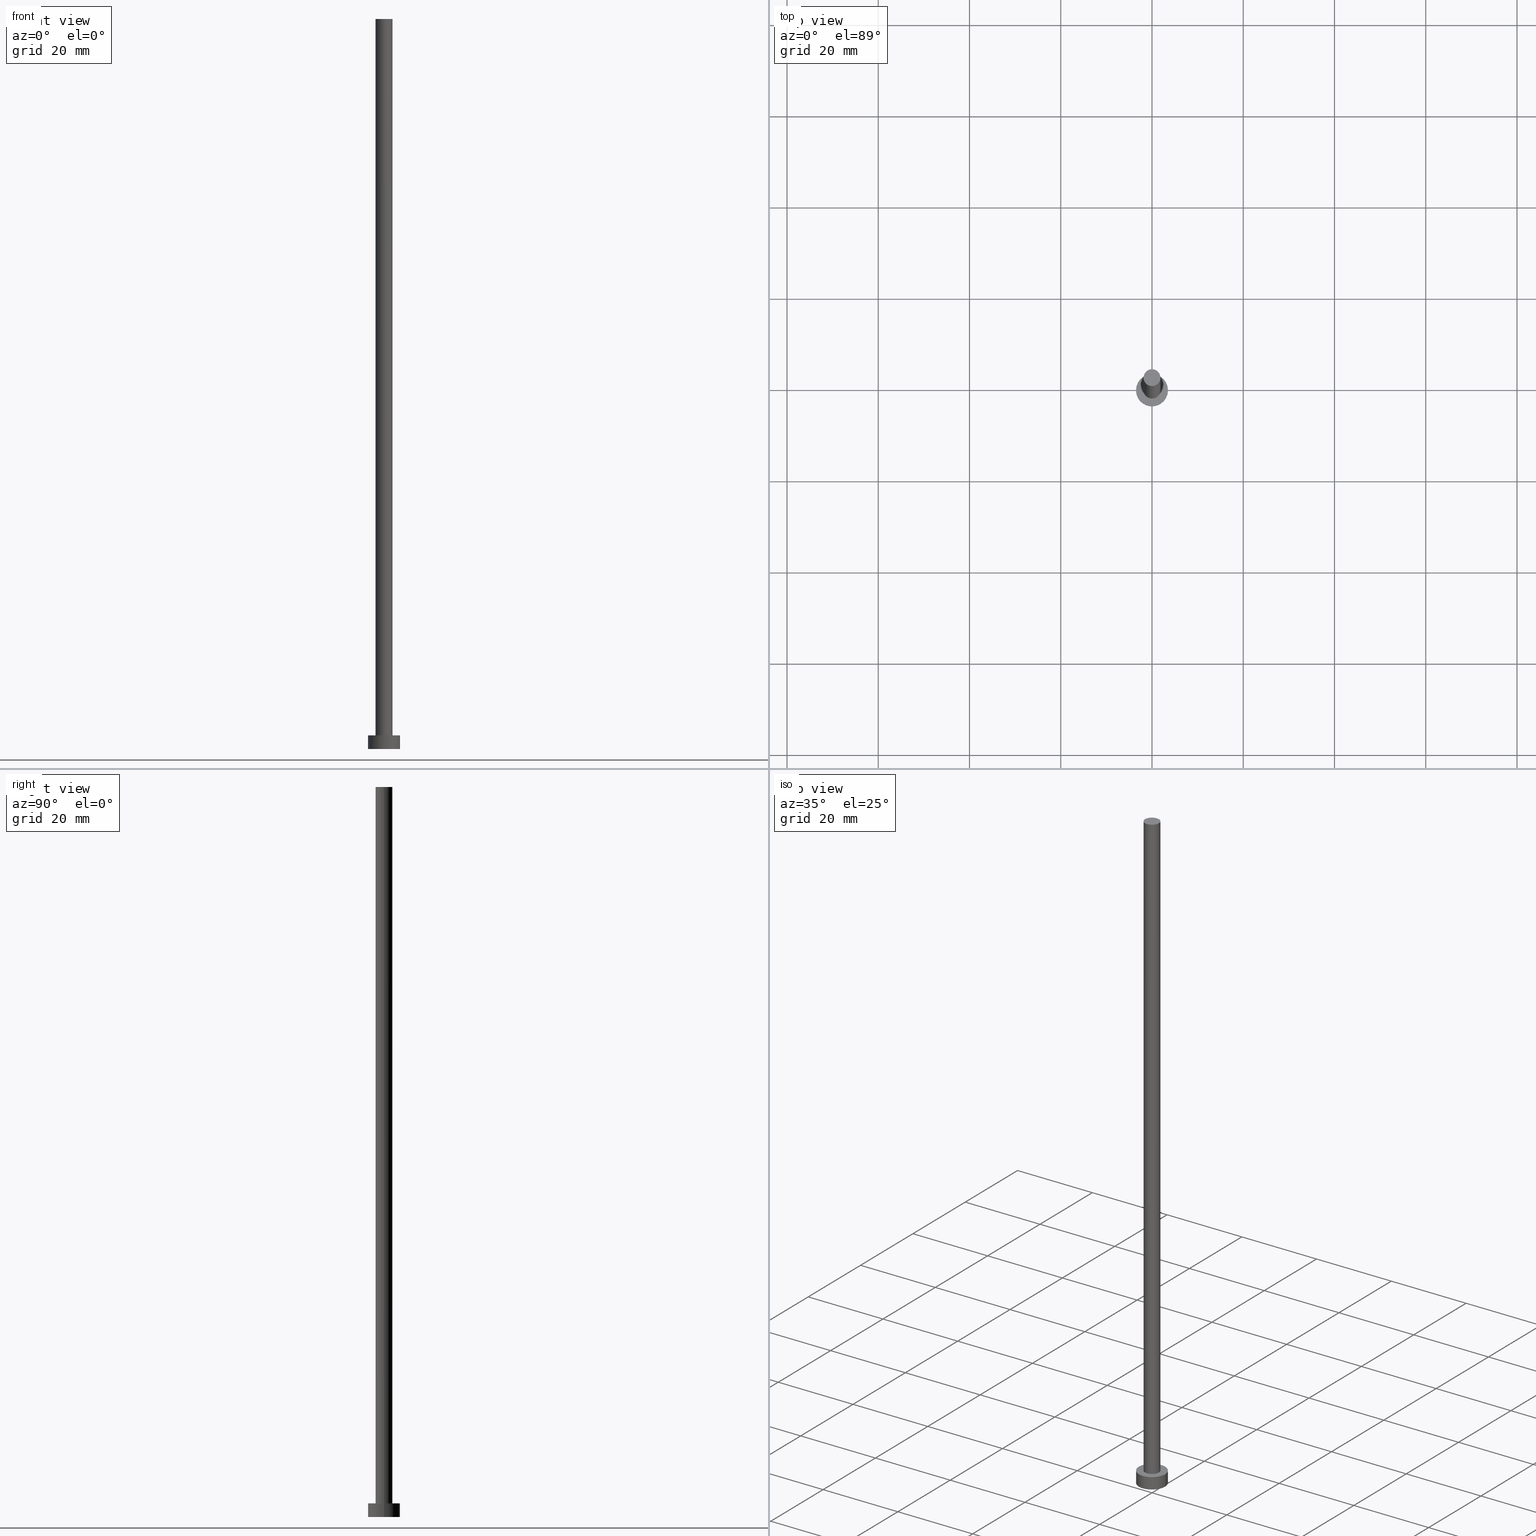
[diagram: canonical four-view strip — front | top / right | iso, engineering-drawing reading convention]
A machine part, canonical four-view strip (front | top / right | iso — engineering-drawing reading convention). The complete STEP part file that produces these views, byte-faithful:
ISO-10303-21;
HEADER;
FILE_DESCRIPTION (( 'STEP AP203' ),
    '1' );
FILE_NAME ('5fde.STEP',
    '2026-02-06T12:43:08',
    ( '' ),
    ( '' ),
    'SwSTEP 2.0',
    'SolidWorks 2019',
    '' );
FILE_SCHEMA (( 'CONFIG_CONTROL_DESIGN' ));
ENDSEC;

DATA;
#1 = AXIS2_PLACEMENT_3D ( 'NONE', #151, #194, #233 ) ;
#2 = DATE_TIME_ROLE ( 'classification_date' ) ;
#3 = AXIS2_PLACEMENT_3D ( 'NONE', #152, #169, #44 ) ;
#4 = EDGE_CURVE ( 'NONE', #75, #63, #158, .T. ) ;
#5 = PERSON_AND_ORGANIZATION ( #40, #109 ) ;
#6 = ORIENTED_EDGE ( 'NONE', *, *, #200, .T. ) ;
#7 = CC_DESIGN_PERSON_AND_ORGANIZATION_ASSIGNMENT ( #5, #221, ( #83 ) ) ;
#8 = EDGE_CURVE ( 'NONE', #201, #178, #189, .T. ) ;
#9 = LINE ( 'NONE', #103, #110 ) ;
#10 = CLOSED_SHELL ( 'NONE', ( #156, #244, #45, #124, #87, #240, #174 ) ) ;
#11 = CARTESIAN_POINT ( 'NONE',  ( 3.500000000000000444, 4.286263797015737088E-16, 0.000000000000000000 ) ) ;
#12 = DESIGN_CONTEXT ( 'detailed design', #133, 'design' ) ;
#13 = DIRECTION ( 'NONE',  ( 1.000000000000000000, 0.000000000000000000, -0.000000000000000000 ) ) ;
#14 = ADVANCED_BREP_SHAPE_REPRESENTATION ( '5fde', ( #214, #93 ), #230 ) ;
#15 = CARTESIAN_POINT ( 'NONE',  ( 0.000000000000000000, 0.000000000000000000, 3.000000000000000000 ) ) ;
#16 = CALENDAR_DATE ( 2026, 6, 2 ) ;
#17 = DIRECTION ( 'NONE',  ( 0.000000000000000000, 0.000000000000000000, 1.000000000000000000 ) ) ;
#18 = SECURITY_CLASSIFICATION ( '', '', #224 ) ;
#19 = CARTESIAN_POINT ( 'NONE',  ( 0.000000000000000000, 0.000000000000000000, 160.0000000000000000 ) ) ;
#20 = APPROVAL_STATUS ( 'not_yet_approved' ) ;
#21 = VERTEX_POINT ( 'NONE', #11 ) ;
#22 = EDGE_CURVE ( 'NONE', #21, #178, #53, .T. ) ;
#23 = PERSON_AND_ORGANIZATION ( #40, #109 ) ;
#24 = VERTEX_POINT ( 'NONE', #191 ) ;
#25 = CIRCLE ( 'NONE', #125, 1.850000000000000089 ) ;
#26 = ORIENTED_EDGE ( 'NONE', *, *, #106, .F. ) ;
#27 = COORDINATED_UNIVERSAL_TIME_OFFSET ( 1, 0, .AHEAD. ) ;
#28 = DIRECTION ( 'NONE',  ( 1.000000000000000000, 0.000000000000000000, 0.000000000000000000 ) ) ;
#29 = CIRCLE ( 'NONE', #72, 3.500000000000000444 ) ;
#30 = CARTESIAN_POINT ( 'NONE',  ( 0.000000000000000000, 0.000000000000000000, 0.000000000000000000 ) ) ;
#31 = EDGE_LOOP ( 'NONE', ( #131, #39 ) ) ;
#32 = FACE_OUTER_BOUND ( 'NONE', #239, .T. ) ;
#33 = ORIENTED_EDGE ( 'NONE', *, *, #185, .F. ) ;
#34 = ORIENTED_EDGE ( 'NONE', *, *, #98, .F. ) ;
#35 = CIRCLE ( 'NONE', #183, 3.500000000000000444 ) ;
#36 = DIRECTION ( 'NONE',  ( 0.000000000000000000, 0.000000000000000000, 1.000000000000000000 ) ) ;
#37 = AXIS2_PLACEMENT_3D ( 'NONE', #171, #73, #13 ) ;
#38 = CC_DESIGN_APPROVAL ( #212, ( #205 ) ) ;
#39 = ORIENTED_EDGE ( 'NONE', *, *, #22, .F. ) ;
#40 = PERSON ( 'NEUR�EN�', 'NEUR�EN�', 'NEUR�EN�', ('NEUR�EN�'), ('NEUR�EN�'), ('NEUR�EN�') ) ;
#41 = AXIS2_PLACEMENT_3D ( 'NONE', #231, #132, #187 ) ;
#42 = AXIS2_PLACEMENT_3D ( 'NONE', #30, #226, #28 ) ;
#43 = ORIENTED_EDGE ( 'NONE', *, *, #229, .F. ) ;
#44 = DIRECTION ( 'NONE',  ( 1.000000000000000000, 0.000000000000000000, 0.000000000000000000 ) ) ;
#45 = ADVANCED_FACE ( 'NONE', ( #101 ), #228, .T. ) ;
#46 = ORIENTED_EDGE ( 'NONE', *, *, #188, .F. ) ;
#47 = CIRCLE ( 'NONE', #148, 3.500000000000000444 ) ;
#48 = LOCAL_TIME ( 13, 43, 8.000000000000000000, #120 ) ;
#49 = COORDINATED_UNIVERSAL_TIME_OFFSET ( 1, 0, .AHEAD. ) ;
#50 = CARTESIAN_POINT ( 'NONE',  ( 0.000000000000000000, 0.000000000000000000, 160.0000000000000000 ) ) ;
#51 = DIRECTION ( 'NONE',  ( 1.000000000000000000, 0.000000000000000000, 0.000000000000000000 ) ) ;
#52 = ORIENTED_EDGE ( 'NONE', *, *, #8, .T. ) ;
#53 = CIRCLE ( 'NONE', #42, 3.500000000000000444 ) ;
#54 = EDGE_CURVE ( 'NONE', #204, #75, #9, .T. ) ;
#55 = UNCERTAINTY_MEASURE_WITH_UNIT (LENGTH_MEASURE( 1.000000000000000082E-05 ), #249, 'distance_accuracy_value', 'NONE');
#56 = DIRECTION ( 'NONE',  ( -1.000000000000000000, 0.000000000000000000, 0.000000000000000000 ) ) ;
#57 = DIRECTION ( 'NONE',  ( -0.000000000000000000, -0.000000000000000000, -1.000000000000000000 ) ) ;
#58 = LOCAL_TIME ( 13, 43, 8.000000000000000000, #143 ) ;
#59 = DIRECTION ( 'NONE',  ( 0.000000000000000000, 0.000000000000000000, 1.000000000000000000 ) ) ;
#60 = DATE_AND_TIME ( #234, #153 ) ;
#61 = PERSON_AND_ORGANIZATION ( #40, #109 ) ;
#62 = PERSON_AND_ORGANIZATION_ROLE ( 'design_owner' ) ;
#63 = VERTEX_POINT ( 'NONE', #90 ) ;
#64 = DATE_AND_TIME ( #165, #66 ) ;
#65 = EDGE_LOOP ( 'NONE', ( #108, #84 ) ) ;
#66 = LOCAL_TIME ( 13, 43, 8.000000000000000000, #49 ) ;
#67 = APPROVAL_ROLE ( '' ) ;
#68 = ORIENTED_EDGE ( 'NONE', *, *, #54, .F. ) ;
#69 = DIRECTION ( 'NONE',  ( -0.000000000000000000, -0.000000000000000000, -1.000000000000000000 ) ) ;
#70 = PRODUCT_DEFINITION_SHAPE ( 'NONE', 'NONE',  #205 ) ;
#71 = ORIENTED_EDGE ( 'NONE', *, *, #185, .T. ) ;
#72 = AXIS2_PLACEMENT_3D ( 'NONE', #121, #36, #117 ) ;
#73 = DIRECTION ( 'NONE',  ( 0.000000000000000000, 0.000000000000000000, 1.000000000000000000 ) ) ;
#74 = PLANE ( 'NONE',  #162 ) ;
#75 = VERTEX_POINT ( 'NONE', #223 ) ;
#76 =( NAMED_UNIT ( * ) PLANE_ANGLE_UNIT ( ) SI_UNIT ( $, .RADIAN. ) );
#77 = DIRECTION ( 'NONE',  ( -0.000000000000000000, -0.000000000000000000, -1.000000000000000000 ) ) ;
#78 = CC_DESIGN_PERSON_AND_ORGANIZATION_ASSIGNMENT ( #168, #88, ( #18 ) ) ;
#79 = DIRECTION ( 'NONE',  ( 1.000000000000000000, 0.000000000000000000, 0.000000000000000000 ) ) ;
#80 = CARTESIAN_POINT ( 'NONE',  ( -1.850000000000000089, 0.000000000000000000, 160.0000000000000000 ) ) ;
#81 = FACE_OUTER_BOUND ( 'NONE', #167, .T. ) ;
#82 = ORIENTED_EDGE ( 'NONE', *, *, #54, .T. ) ;
#83 = PRODUCT_DEFINITION_FORMATION_WITH_SPECIFIED_SOURCE ( 'LIBOVOLN�', '', #225, .NOT_KNOWN. ) ;
#84 = ORIENTED_EDGE ( 'NONE', *, *, #4, .F. ) ;
#85 = VECTOR ( 'NONE', #57, 1000.000000000000000 ) ;
#86 = VERTEX_POINT ( 'NONE', #128 ) ;
#87 = ADVANCED_FACE ( 'NONE', ( #245 ), #104, .F. ) ;
#88 = PERSON_AND_ORGANIZATION_ROLE ( 'classification_officer' ) ;
#89 = CARTESIAN_POINT ( 'NONE',  ( -3.500000000000000444, 0.000000000000000000, 3.000000000000000000 ) ) ;
#90 = CARTESIAN_POINT ( 'NONE',  ( -1.850000000000000089, 0.000000000000000000, 3.000000000000000000 ) ) ;
#91 = MECHANICAL_CONTEXT ( 'NONE', #99, 'mechanical' ) ;
#92 = DIRECTION ( 'NONE',  ( -0.000000000000000000, -0.000000000000000000, -1.000000000000000000 ) ) ;
#93 = AXIS2_PLACEMENT_3D ( 'NONE', #116, #195, #51 ) ;
#94 = LINE ( 'NONE', #80, #85 ) ;
#95 = DIRECTION ( 'NONE',  ( 0.000000000000000000, 0.000000000000000000, 1.000000000000000000 ) ) ;
#96 = DATE_AND_TIME ( #16, #48 ) ;
#97 = CARTESIAN_POINT ( 'NONE',  ( 3.500000000000000444, 4.286263797015737088E-16, 3.000000000000000000 ) ) ;
#98 = EDGE_CURVE ( 'NONE', #86, #201, #35, .T. ) ;
#99 = APPLICATION_CONTEXT ( 'configuration controlled 3d designs of mechanical parts and assemblies' ) ;
#100 = SHAPE_DEFINITION_REPRESENTATION ( #70, #14 ) ;
#101 = FACE_OUTER_BOUND ( 'NONE', #242, .T. ) ;
#102 = APPROVAL_PERSON_ORGANIZATION ( #166, #193, #67 ) ;
#103 = CARTESIAN_POINT ( 'NONE',  ( 1.850000000000000089, 2.265596578422603100E-16, 160.0000000000000000 ) ) ;
#104 = PLANE ( 'NONE',  #37 ) ;
#105 = DIRECTION ( 'NONE',  ( 1.000000000000000000, 0.000000000000000000, -0.000000000000000000 ) ) ;
#106 = EDGE_CURVE ( 'NONE', #24, #204, #218, .T. ) ;
#107 = DIRECTION ( 'NONE',  ( -0.000000000000000000, -0.000000000000000000, -1.000000000000000000 ) ) ;
#108 = ORIENTED_EDGE ( 'NONE', *, *, #209, .F. ) ;
#109 = ORGANIZATION ( 'NEUR�EN�', 'NEUR�EN�', '' ) ;
#110 = VECTOR ( 'NONE', #69, 1000.000000000000000 ) ;
#111 = CC_DESIGN_DATE_AND_TIME_ASSIGNMENT ( #64, #2, ( #18 ) ) ;
#112 = APPLICATION_PROTOCOL_DEFINITION ( 'international standard', 'config_control_design', 1994, #99 ) ;
#113 = CYLINDRICAL_SURFACE ( 'NONE', #202, 1.850000000000000089 ) ;
#114 = DIRECTION ( 'NONE',  ( -0.000000000000000000, -0.000000000000000000, -1.000000000000000000 ) ) ;
#115 = CC_DESIGN_APPROVAL ( #193, ( #18 ) ) ;
#116 = CARTESIAN_POINT ( 'NONE',  ( 0.000000000000000000, 0.000000000000000000, 0.000000000000000000 ) ) ;
#117 = DIRECTION ( 'NONE',  ( 1.000000000000000000, 0.000000000000000000, 0.000000000000000000 ) ) ;
#118 = PERSON_AND_ORGANIZATION_ROLE ( 'creator' ) ;
#119 = CARTESIAN_POINT ( 'NONE',  ( 0.000000000000000000, 0.000000000000000000, 3.000000000000000000 ) ) ;
#120 = COORDINATED_UNIVERSAL_TIME_OFFSET ( 1, 0, .AHEAD. ) ;
#121 = CARTESIAN_POINT ( 'NONE',  ( 0.000000000000000000, 0.000000000000000000, 3.000000000000000000 ) ) ;
#122 = ORIENTED_EDGE ( 'NONE', *, *, #200, .F. ) ;
#123 = CC_DESIGN_PERSON_AND_ORGANIZATION_ASSIGNMENT ( #250, #118, ( #205 ) ) ;
#124 = ADVANCED_FACE ( 'NONE', ( #134, #216 ), #74, .T. ) ;
#125 = AXIS2_PLACEMENT_3D ( 'NONE', #15, #59, #232 ) ;
#126 = ORIENTED_EDGE ( 'NONE', *, *, #154, .T. ) ;
#127 = DATE_AND_TIME ( #222, #58 ) ;
#128 = CARTESIAN_POINT ( 'NONE',  ( 3.500000000000000444, 4.286263797015737088E-16, 3.000000000000000000 ) ) ;
#129 = EDGE_LOOP ( 'NONE', ( #33, #82, #247, #46 ) ) ;
#130 = CC_DESIGN_PERSON_AND_ORGANIZATION_ASSIGNMENT ( #181, #145, ( #83 ) ) ;
#131 = ORIENTED_EDGE ( 'NONE', *, *, #154, .F. ) ;
#132 = DIRECTION ( 'NONE',  ( 0.000000000000000000, 0.000000000000000000, 1.000000000000000000 ) ) ;
#133 = APPLICATION_CONTEXT ( 'configuration controlled 3d designs of mechanical parts and assemblies' ) ;
#134 = FACE_BOUND ( 'NONE', #65, .T. ) ;
#135 = PLANE ( 'NONE',  #1 ) ;
#136 = DATE_TIME_ROLE ( 'creation_date' ) ;
#137 = FACE_OUTER_BOUND ( 'NONE', #129, .T. ) ;
#138 = LINE ( 'NONE', #97, #215 ) ;
#139 = APPROVAL_ROLE ( '' ) ;
#140 = AXIS2_PLACEMENT_3D ( 'NONE', #172, #77, #149 ) ;
#141 = APPROVAL_DATE_TIME ( #238, #160 ) ;
#142 = EDGE_LOOP ( 'NONE', ( #6, #144 ) ) ;
#143 = COORDINATED_UNIVERSAL_TIME_OFFSET ( 1, 0, .AHEAD. ) ;
#144 = ORIENTED_EDGE ( 'NONE', *, *, #98, .T. ) ;
#145 = PERSON_AND_ORGANIZATION_ROLE ( 'design_supplier' ) ;
#146 = EDGE_LOOP ( 'NONE', ( #34, #208, #180, #227 ) ) ;
#147 = PRODUCT_RELATED_PRODUCT_CATEGORY ( 'detail', '', ( #225 ) ) ;
#148 = AXIS2_PLACEMENT_3D ( 'NONE', #255, #253, #79 ) ;
#149 = DIRECTION ( 'NONE',  ( -1.000000000000000000, 0.000000000000000000, 0.000000000000000000 ) ) ;
#150 = FACE_OUTER_BOUND ( 'NONE', #146, .T. ) ;
#151 = CARTESIAN_POINT ( 'NONE',  ( 0.000000000000000000, 0.000000000000000000, 160.0000000000000000 ) ) ;
#152 = CARTESIAN_POINT ( 'NONE',  ( 0.000000000000000000, 0.000000000000000000, 3.000000000000000000 ) ) ;
#153 = LOCAL_TIME ( 13, 43, 8.000000000000000000, #175 ) ;
#154 = EDGE_CURVE ( 'NONE', #178, #21, #47, .T. ) ;
#155 = CYLINDRICAL_SURFACE ( 'NONE', #179, 1.850000000000000089 ) ;
#156 = ADVANCED_FACE ( 'NONE', ( #137 ), #155, .T. ) ;
#157 = CARTESIAN_POINT ( 'NONE',  ( -3.500000000000000444, 0.000000000000000000, 0.000000000000000000 ) ) ;
#158 = CIRCLE ( 'NONE', #3, 1.850000000000000089 ) ;
#159 = DIRECTION ( 'NONE',  ( 1.000000000000000000, 0.000000000000000000, 0.000000000000000000 ) ) ;
#160 = APPROVAL ( #20, 'NEUR�EN�' ) ;
#161 = CARTESIAN_POINT ( 'NONE',  ( 0.000000000000000000, 0.000000000000000000, 3.000000000000000000 ) ) ;
#162 = AXIS2_PLACEMENT_3D ( 'NONE', #161, #95, #105 ) ;
#163 = CC_DESIGN_APPROVAL ( #160, ( #83 ) ) ;
#164 = ORIENTED_EDGE ( 'NONE', *, *, #209, .T. ) ;
#165 = CALENDAR_DATE ( 2026, 6, 2 ) ;
#166 = PERSON_AND_ORGANIZATION ( #40, #109 ) ;
#167 = EDGE_LOOP ( 'NONE', ( #182, #71 ) ) ;
#168 = PERSON_AND_ORGANIZATION ( #40, #109 ) ;
#169 = DIRECTION ( 'NONE',  ( 0.000000000000000000, 0.000000000000000000, 1.000000000000000000 ) ) ;
#170 = DIRECTION ( 'NONE',  ( -1.000000000000000000, 0.000000000000000000, 0.000000000000000000 ) ) ;
#171 = CARTESIAN_POINT ( 'NONE',  ( 0.000000000000000000, 0.000000000000000000, 0.000000000000000000 ) ) ;
#172 = CARTESIAN_POINT ( 'NONE',  ( 0.000000000000000000, 0.000000000000000000, 3.000000000000000000 ) ) ;
#173 = VECTOR ( 'NONE', #92, 1000.000000000000000 ) ;
#174 = ADVANCED_FACE ( 'NONE', ( #81 ), #135, .T. ) ;
#175 = COORDINATED_UNIVERSAL_TIME_OFFSET ( 1, 0, .AHEAD. ) ;
#176 = PERSON_AND_ORGANIZATION ( #40, #109 ) ;
#177 = APPROVAL_ROLE ( '' ) ;
#178 = VERTEX_POINT ( 'NONE', #157 ) ;
#179 = AXIS2_PLACEMENT_3D ( 'NONE', #210, #114, #197 ) ;
#180 = ORIENTED_EDGE ( 'NONE', *, *, #22, .T. ) ;
#181 = PERSON_AND_ORGANIZATION ( #40, #109 ) ;
#182 = ORIENTED_EDGE ( 'NONE', *, *, #106, .T. ) ;
#183 = AXIS2_PLACEMENT_3D ( 'NONE', #119, #246, #217 ) ;
#184 = CC_DESIGN_PERSON_AND_ORGANIZATION_ASSIGNMENT ( #176, #62, ( #225 ) ) ;
#185 = EDGE_CURVE ( 'NONE', #204, #24, #251, .T. ) ;
#186 = CALENDAR_DATE ( 2026, 6, 2 ) ;
#187 = DIRECTION ( 'NONE',  ( 1.000000000000000000, 0.000000000000000000, 0.000000000000000000 ) ) ;
#188 = EDGE_CURVE ( 'NONE', #24, #63, #94, .T. ) ;
#189 = LINE ( 'NONE', #89, #173 ) ;
#190 = DIRECTION ( 'NONE',  ( -0.000000000000000000, -0.000000000000000000, -1.000000000000000000 ) ) ;
#191 = CARTESIAN_POINT ( 'NONE',  ( -1.850000000000000089, 0.000000000000000000, 160.0000000000000000 ) ) ;
#192 = CARTESIAN_POINT ( 'NONE',  ( 0.000000000000000000, 0.000000000000000000, 3.000000000000000000 ) ) ;
#193 = APPROVAL ( #241, 'NEUR�EN�' ) ;
#194 = DIRECTION ( 'NONE',  ( 0.000000000000000000, 0.000000000000000000, 1.000000000000000000 ) ) ;
#195 = DIRECTION ( 'NONE',  ( 0.000000000000000000, 0.000000000000000000, 1.000000000000000000 ) ) ;
#196 = CARTESIAN_POINT ( 'NONE',  ( 1.850000000000000089, 2.265596578422603100E-16, 160.0000000000000000 ) ) ;
#197 = DIRECTION ( 'NONE',  ( -1.000000000000000000, 0.000000000000000000, 0.000000000000000000 ) ) ;
#198 = CARTESIAN_POINT ( 'NONE',  ( -3.500000000000000444, 0.000000000000000000, 3.000000000000000000 ) ) ;
#199 = APPROVAL_DATE_TIME ( #60, #212 ) ;
#200 = EDGE_CURVE ( 'NONE', #201, #86, #29, .T. ) ;
#201 = VERTEX_POINT ( 'NONE', #198 ) ;
#202 = AXIS2_PLACEMENT_3D ( 'NONE', #50, #107, #56 ) ;
#203 = LOCAL_TIME ( 13, 43, 8.000000000000000000, #27 ) ;
#204 = VERTEX_POINT ( 'NONE', #196 ) ;
#205 = PRODUCT_DEFINITION ( 'NEZN�M�', '', #83, #12 ) ;
#206 = APPROVAL_DATE_TIME ( #127, #193 ) ;
#207 = AXIS2_PLACEMENT_3D ( 'NONE', #19, #17, #159 ) ;
#208 = ORIENTED_EDGE ( 'NONE', *, *, #229, .T. ) ;
#209 = EDGE_CURVE ( 'NONE', #63, #75, #25, .T. ) ;
#210 = CARTESIAN_POINT ( 'NONE',  ( 0.000000000000000000, 0.000000000000000000, 160.0000000000000000 ) ) ;
#211 = APPROVAL_PERSON_ORGANIZATION ( #61, #160, #177 ) ;
#212 = APPROVAL ( #237, 'NEUR�EN�' ) ;
#213 = CYLINDRICAL_SURFACE ( 'NONE', #220, 3.500000000000000444 ) ;
#214 = MANIFOLD_SOLID_BREP ( 'P�idat vysunut�m3', #10 ) ;
#215 = VECTOR ( 'NONE', #219, 1000.000000000000000 ) ;
#216 = FACE_OUTER_BOUND ( 'NONE', #142, .T. ) ;
#217 = DIRECTION ( 'NONE',  ( 1.000000000000000000, 0.000000000000000000, 0.000000000000000000 ) ) ;
#218 = CIRCLE ( 'NONE', #207, 1.850000000000000089 ) ;
#219 = DIRECTION ( 'NONE',  ( -0.000000000000000000, -0.000000000000000000, -1.000000000000000000 ) ) ;
#220 = AXIS2_PLACEMENT_3D ( 'NONE', #192, #190, #170 ) ;
#221 = PERSON_AND_ORGANIZATION_ROLE ( 'creator' ) ;
#222 = CALENDAR_DATE ( 2026, 6, 2 ) ;
#223 = CARTESIAN_POINT ( 'NONE',  ( 1.850000000000000089, 2.265596578422603100E-16, 3.000000000000000000 ) ) ;
#224 = SECURITY_CLASSIFICATION_LEVEL ( 'unclassified' ) ;
#225 = PRODUCT ( '5fde', '5fde', '', ( #91 ) ) ;
#226 = DIRECTION ( 'NONE',  ( 0.000000000000000000, 0.000000000000000000, 1.000000000000000000 ) ) ;
#227 = ORIENTED_EDGE ( 'NONE', *, *, #8, .F. ) ;
#228 = CYLINDRICAL_SURFACE ( 'NONE', #140, 3.500000000000000444 ) ;
#229 = EDGE_CURVE ( 'NONE', #86, #21, #138, .T. ) ;
#230 =( GEOMETRIC_REPRESENTATION_CONTEXT ( 3 ) GLOBAL_UNCERTAINTY_ASSIGNED_CONTEXT ( ( #55 ) ) GLOBAL_UNIT_ASSIGNED_CONTEXT ( ( #249, #76, #248 ) ) REPRESENTATION_CONTEXT ( 'NONE', 'WORKASPACE' ) );
#231 = CARTESIAN_POINT ( 'NONE',  ( 0.000000000000000000, 0.000000000000000000, 160.0000000000000000 ) ) ;
#232 = DIRECTION ( 'NONE',  ( 1.000000000000000000, 0.000000000000000000, 0.000000000000000000 ) ) ;
#233 = DIRECTION ( 'NONE',  ( 1.000000000000000000, 0.000000000000000000, -0.000000000000000000 ) ) ;
#234 = CALENDAR_DATE ( 2026, 6, 2 ) ;
#235 = APPROVAL_PERSON_ORGANIZATION ( #23, #212, #139 ) ;
#236 = CC_DESIGN_DATE_AND_TIME_ASSIGNMENT ( #96, #136, ( #205 ) ) ;
#237 = APPROVAL_STATUS ( 'not_yet_approved' ) ;
#238 = DATE_AND_TIME ( #186, #203 ) ;
#239 = EDGE_LOOP ( 'NONE', ( #68, #26, #243, #164 ) ) ;
#240 = ADVANCED_FACE ( 'NONE', ( #32 ), #113, .T. ) ;
#241 = APPROVAL_STATUS ( 'not_yet_approved' ) ;
#242 = EDGE_LOOP ( 'NONE', ( #43, #122, #52, #126 ) ) ;
#243 = ORIENTED_EDGE ( 'NONE', *, *, #188, .T. ) ;
#244 = ADVANCED_FACE ( 'NONE', ( #150 ), #213, .T. ) ;
#245 = FACE_OUTER_BOUND ( 'NONE', #31, .T. ) ;
#246 = DIRECTION ( 'NONE',  ( 0.000000000000000000, 0.000000000000000000, 1.000000000000000000 ) ) ;
#247 = ORIENTED_EDGE ( 'NONE', *, *, #4, .T. ) ;
#248 =( NAMED_UNIT ( * ) SI_UNIT ( $, .STERADIAN. ) SOLID_ANGLE_UNIT ( ) );
#249 =( LENGTH_UNIT ( ) NAMED_UNIT ( * ) SI_UNIT ( .MILLI., .METRE. ) );
#250 = PERSON_AND_ORGANIZATION ( #40, #109 ) ;
#251 = CIRCLE ( 'NONE', #41, 1.850000000000000089 ) ;
#252 = CC_DESIGN_SECURITY_CLASSIFICATION ( #18, ( #83 ) ) ;
#253 = DIRECTION ( 'NONE',  ( 0.000000000000000000, 0.000000000000000000, 1.000000000000000000 ) ) ;
#254 = APPLICATION_PROTOCOL_DEFINITION ( 'international standard', 'config_control_design', 1994, #133 ) ;
#255 = CARTESIAN_POINT ( 'NONE',  ( 0.000000000000000000, 0.000000000000000000, 0.000000000000000000 ) ) ;
ENDSEC;
END-ISO-10303-21;
